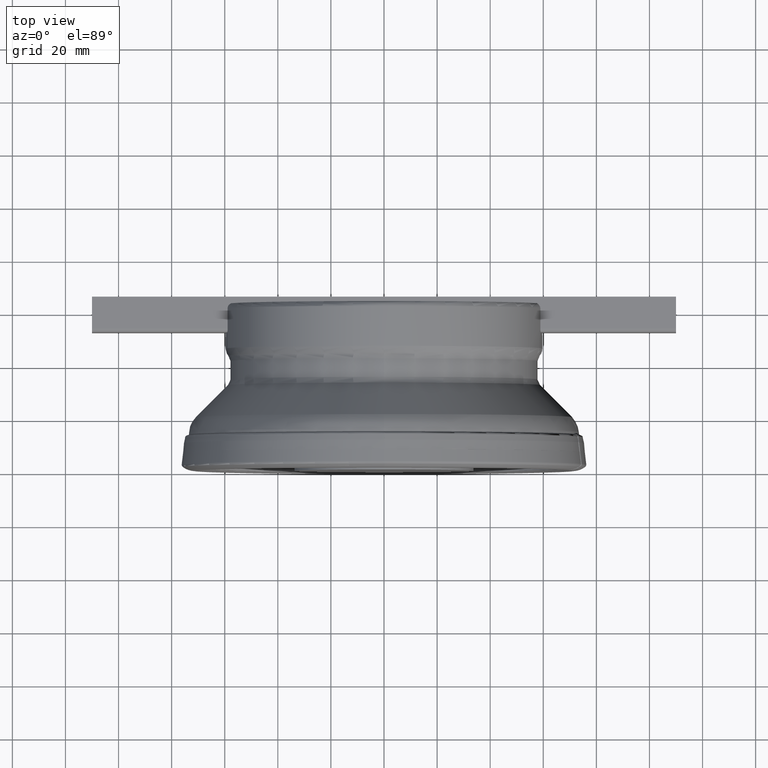
[diagram: clean part render]
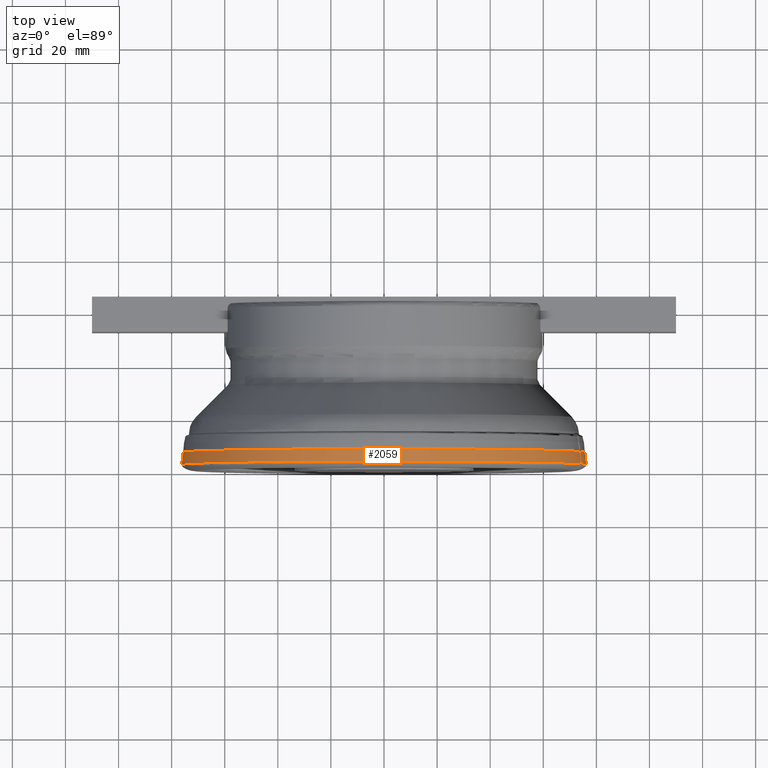
[diagram: same view with one face highlighted and labeled with its STEP entity id]
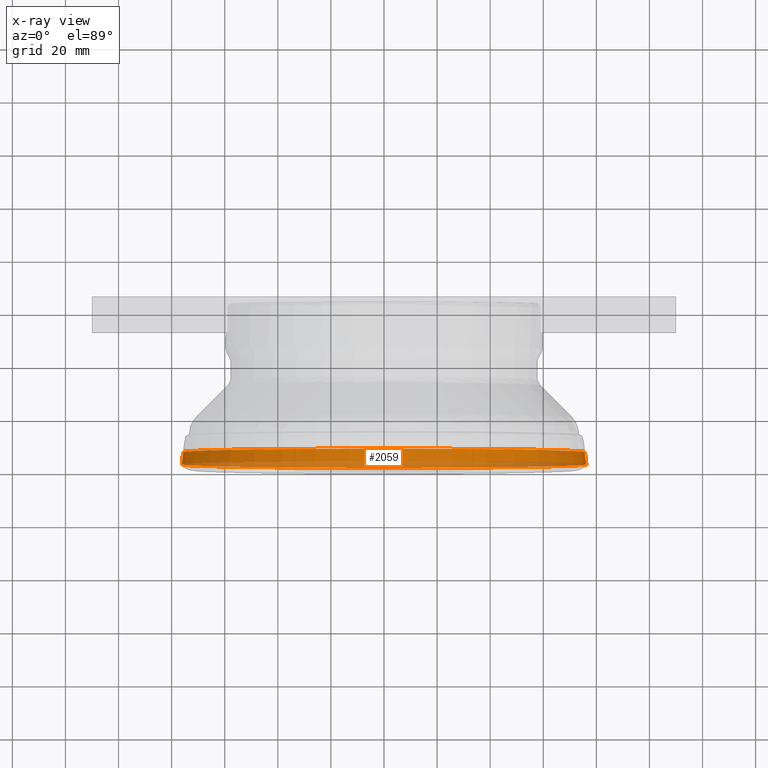
[diagram: x-ray of the same camera — body ghosted, the highlighted face saturated]
A machine part, top view. The second image highlights one B-rep face of the part: STEP entity #2059.
The next image is the same camera in x-ray: the body ghosted, the highlighted face saturated — about 31% of this face is hidden behind the body in this view.
In plain terms, the highlighted face is a SurfaceOfRevolution surface.
Its self-contained STEP definition (entity closure, byte-faithful):
#493=SURFACE_OF_REVOLUTION('',#1716,#517);
#517=AXIS1_PLACEMENT('',#9597,#8092);
#1716=LINE('',#9596,#1873);
#1873=VECTOR('',#8091,4.64407704910386);
#2059=ADVANCED_FACE('',(#2589,#2590),#493,.T.);
#2589=FACE_BOUND('',#2787,.T.);
#2590=FACE_BOUND('',#2788,.T.);
#2787=EDGE_LOOP('',(#3461));
#2788=EDGE_LOOP('',(#3462));
#3461=ORIENTED_EDGE('',*,*,#6129,.F.);
#3462=ORIENTED_EDGE('',*,*,#6128,.T.);
#5440=VERTEX_POINT('',#9585);
#5441=VERTEX_POINT('',#9595);
#6128=EDGE_CURVE('',#5440,#5440,#7124,.T.);
#6129=EDGE_CURVE('',#5441,#5441,#7125,.T.);
#7124=CIRCLE('',#7447,76.1999999999999);
#7125=CIRCLE('',#7448,75.6516000584812);
#7447=AXIS2_PLACEMENT_3D('',#9584,#8086,#8087);
#7448=AXIS2_PLACEMENT_3D('',#9594,#8089,#8090);
#8086=DIRECTION('',(0.,1.,0.));
#8087=DIRECTION('',(0.,0.,1.));
#8089=DIRECTION('',(0.,1.,0.));
#8090=DIRECTION('',(0.,0.,1.));
#8091=DIRECTION('',(-0.118410955067387,0.992900406623187,-0.0112972672598194));
#8092=DIRECTION('',(0.,1.,0.));
#9584=CARTESIAN_POINT('',(0.,2.42293715933076,0.));
#9585=CARTESIAN_POINT('',(0.,2.42293715933076,76.1999999999999));
#9594=CARTESIAN_POINT('',(0.,7.0340431497754,0.));
#9595=CARTESIAN_POINT('',(0.,7.0340431497754,75.6516000584812));
#9596=CARTESIAN_POINT('',(74.4423621289558,2.42293715933077,16.2718997250289));
#9597=CARTESIAN_POINT('',(0.,0.,0.));